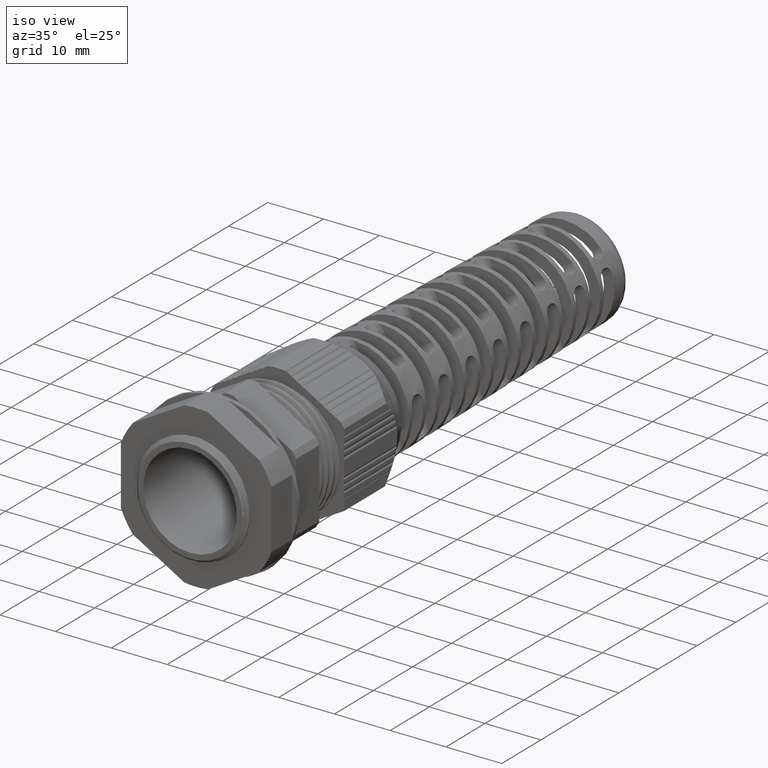
[diagram: clean part render]
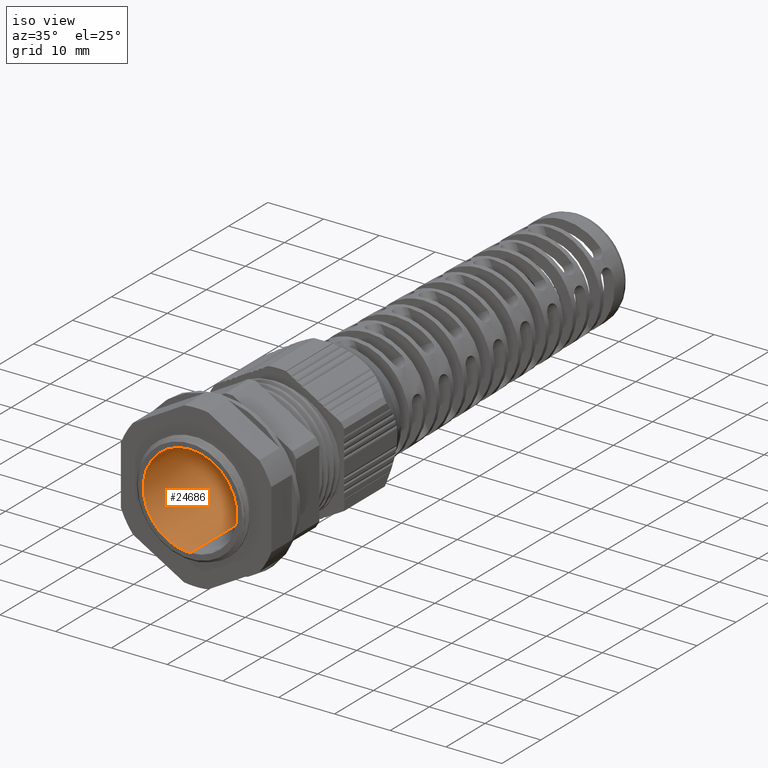
[diagram: tour spotlight — one face highlighted and labeled with its STEP entity id]
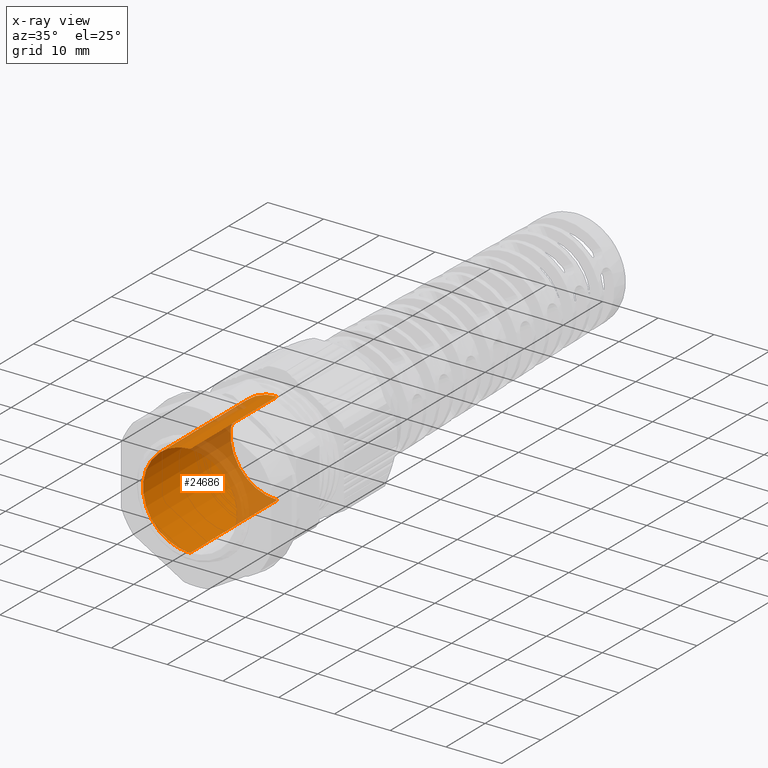
[diagram: x-ray of the same camera — body ghosted, this tour face saturated]
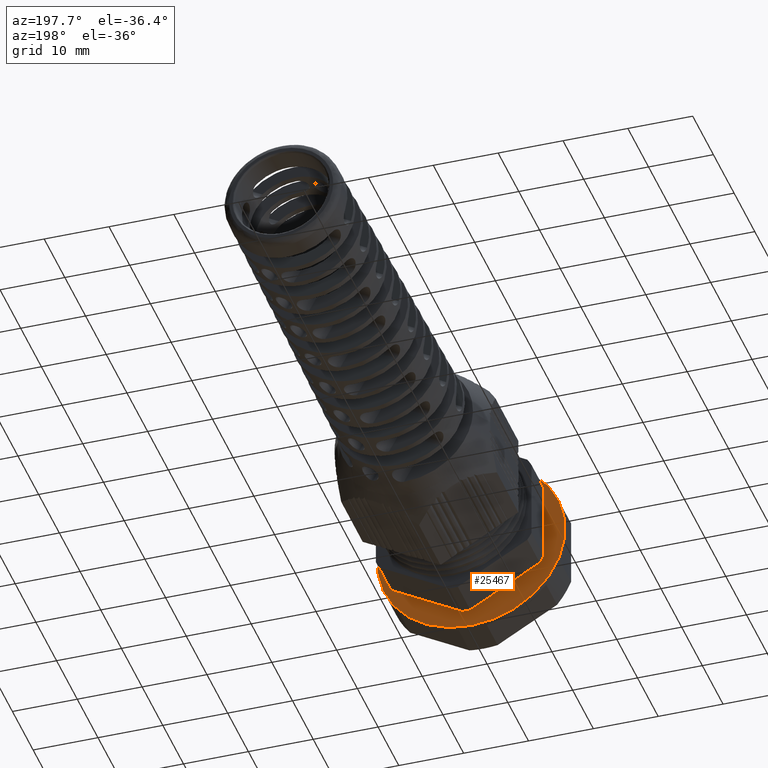
[diagram: tour spotlight — one face highlighted and labeled with its STEP entity id]
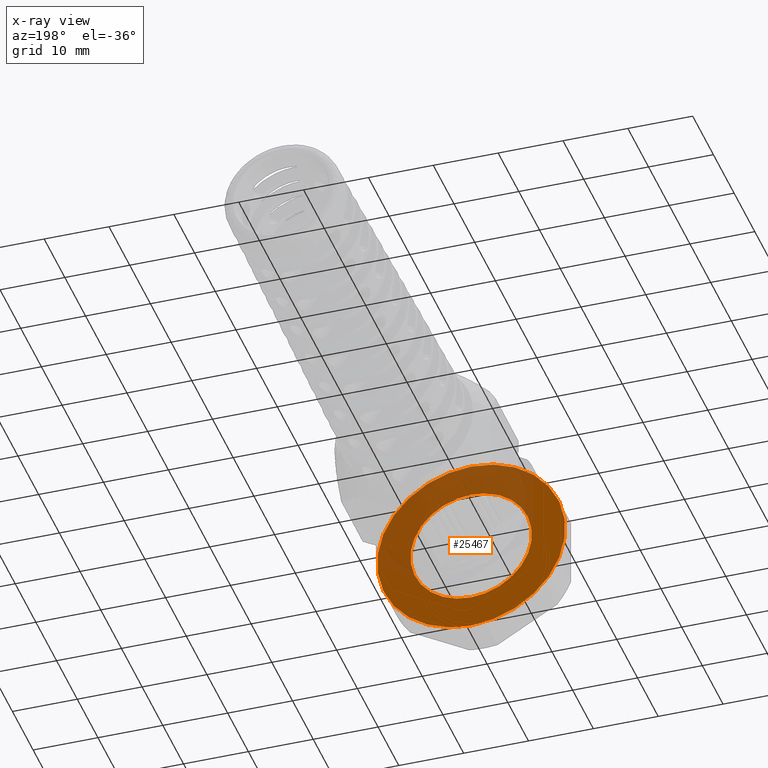
[diagram: x-ray of the same camera — body ghosted, this tour face saturated]
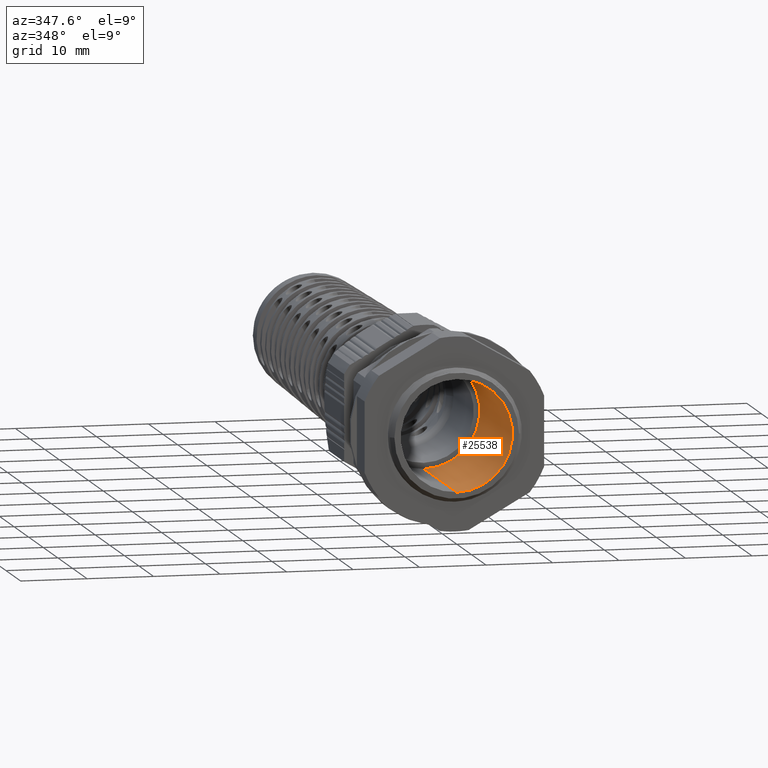
[diagram: tour spotlight — one face highlighted and labeled with its STEP entity id]
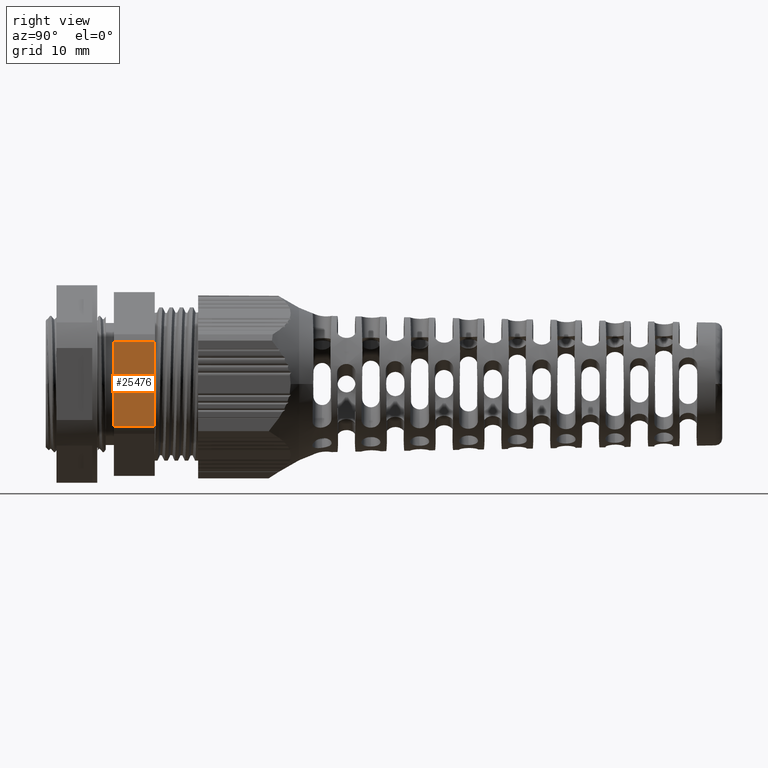
[diagram: tour spotlight — one face highlighted and labeled with its STEP entity id]
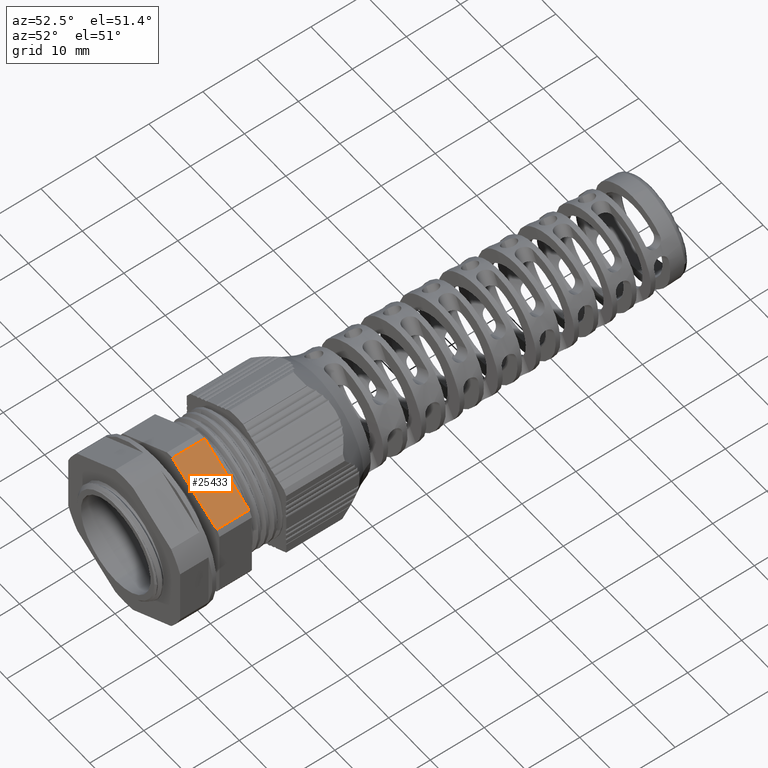
[diagram: tour spotlight — one face highlighted and labeled with its STEP entity id]
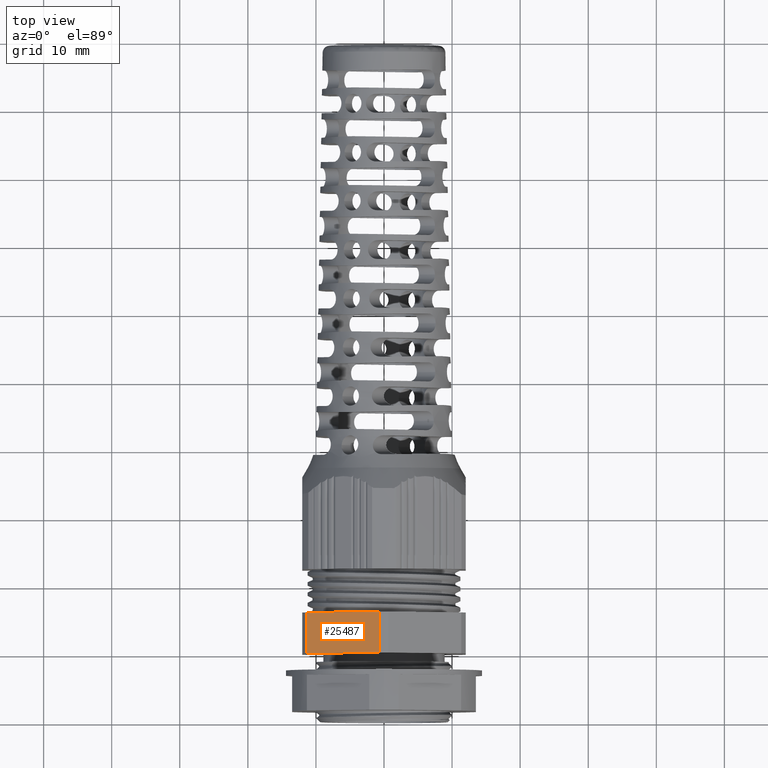
[diagram: tour spotlight — one face highlighted and labeled with its STEP entity id]
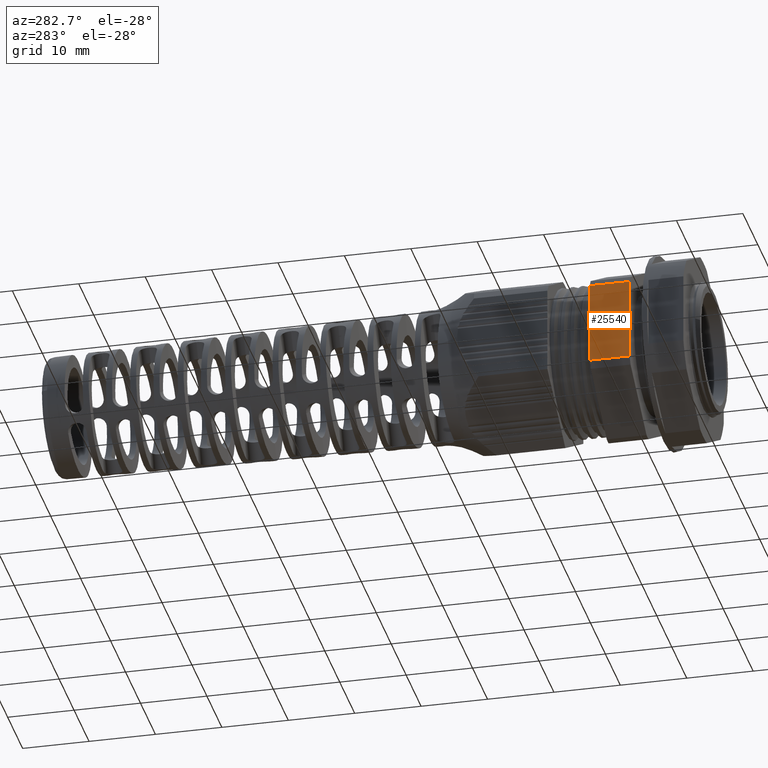
[diagram: tour spotlight — one face highlighted and labeled with its STEP entity id]
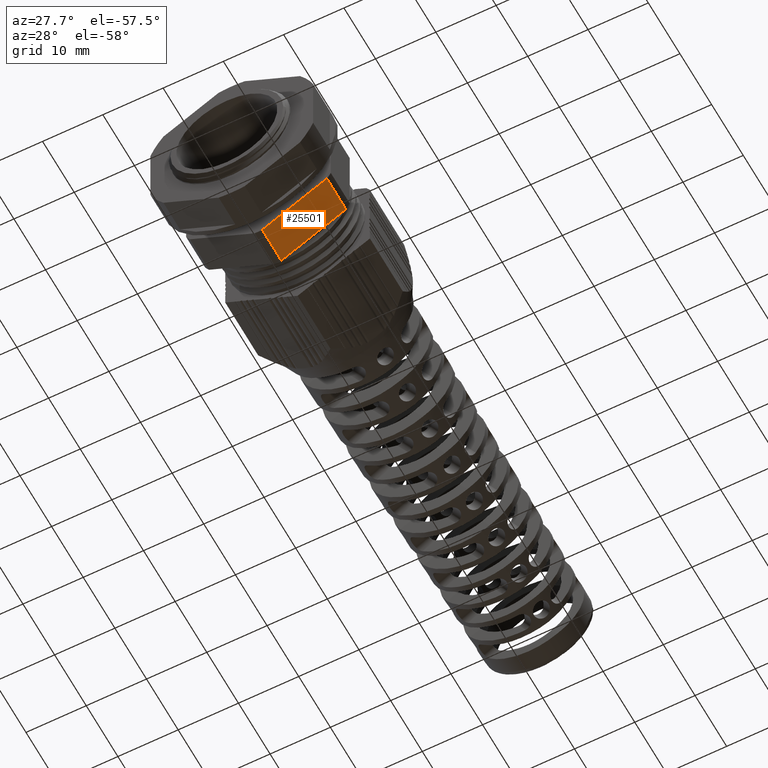
[diagram: tour spotlight — one face highlighted and labeled with its STEP entity id]
A machine part: a face-by-face anatomy tour. The part has 711 B-rep faces; the first image is the clean iso view, then the 8 largest visible faces are spotlighted one at a time (largest first), each with its STEP entity span.

Face 1 — iso view, entity #24686. An x-ray twin of the same camera follows (body ghosted, this face saturated) — the face is partly hidden behind the body. In plain terms, the highlighted cylindrical surface (partial cylindrical patch) has radius 8.4 mm, axis along (0, -1, 0).
Definition (entity closure, byte-faithful):
#2211 = FACE_OUTER_BOUND ( 'NONE', #24215, .T. ) ;
#2215 = CYLINDRICAL_SURFACE ( 'NONE', #22897, 8.400000000000000400 ) ;
#2222 = DIRECTION ( 'NONE',  ( 0.0000000000000000000, -1.000000000000000000, 0.0000000000000000000 ) ) ;
#2232 = DIRECTION ( 'NONE',  ( 0.0000000000000000000, 0.0000000000000000000, -1.000000000000000000 ) ) ;
#2248 = CARTESIAN_POINT ( 'NONE',  ( 50.00000000000000000, 25.28476438100789600, 0.0000000000000000000 ) ) ;
#11690 = CARTESIAN_POINT ( 'NONE',  ( 50.00000000000000000, 25.28476438100789600, 8.400000000000000400 ) ) ;
#11710 = DIRECTION ( 'NONE',  ( 0.0000000000000000000, -1.000000000000000000, 0.0000000000000000000 ) ) ;
#11726 = LINE ( 'NONE', #11690, #23560 ) ;
#11730 = DIRECTION ( 'NONE',  ( -0.0000000000000000000, 1.000000000000000000, -0.0000000000000000000 ) ) ;
#11753 = DIRECTION ( 'NONE',  ( 0.0000000000000000000, 0.0000000000000000000, -1.000000000000000000 ) ) ;
#11758 = CARTESIAN_POINT ( 'NONE',  ( 50.00000000000000000, 0.1283419244637873400, 0.0000000000000000000 ) ) ;
#11792 = CARTESIAN_POINT ( 'NONE',  ( 50.00000000000000000, 22.50000000000000000, 0.0000000000000000000 ) ) ;
#11796 = CARTESIAN_POINT ( 'NONE',  ( 50.00000000000000000, 25.28476438100789600, -8.400000000000000400 ) ) ;
#11800 = DIRECTION ( 'NONE',  ( 0.0000000000000000000, -1.000000000000000000, 0.0000000000000000000 ) ) ;
#11804 = DIRECTION ( 'NONE',  ( 0.0000000000000000000, 0.0000000000000000000, -1.000000000000000000 ) ) ;
#11811 = LINE ( 'NONE', #11796, #23603 ) ;
#11820 = DIRECTION ( 'NONE',  ( 0.0000000000000000000, -1.000000000000000000, 0.0000000000000000000 ) ) ;
#16553 = ORIENTED_EDGE ( 'NONE', *, *, #25654, .F. ) ;
#16615 = ORIENTED_EDGE ( 'NONE', *, *, #25629, .T. ) ;
#16623 = ORIENTED_EDGE ( 'NONE', *, *, #25642, .F. ) ;
#16625 = ORIENTED_EDGE ( 'NONE', *, *, #25651, .F. ) ;
#22897 = AXIS2_PLACEMENT_3D ( 'NONE', #2248, #2222, #2232 ) ;
#23560 = VECTOR ( 'NONE', #11710, 1000.000000000000000 ) ;
#23583 = CIRCLE ( 'NONE', #23585, 8.400000000000000400 ) ;
#23585 = AXIS2_PLACEMENT_3D ( 'NONE', #11758, #11730, #11753 ) ;
#23603 = VECTOR ( 'NONE', #11820, 1000.000000000000000 ) ;
#23628 = AXIS2_PLACEMENT_3D ( 'NONE', #11792, #11800, #11804 ) ;
#23635 = CIRCLE ( 'NONE', #23628, 8.400000000000000400 ) ;
#24051 = VERTEX_POINT ( 'NONE', #33715 ) ;
#24056 = VERTEX_POINT ( 'NONE', #33710 ) ;
#24109 = VERTEX_POINT ( 'NONE', #33724 ) ;
#24175 = VERTEX_POINT ( 'NONE', #33697 ) ;
#24215 = EDGE_LOOP ( 'NONE', ( #16553, #16615, #16623, #16625 ) ) ;
#24686 = ADVANCED_FACE ( 'NONE', ( #2211 ), #2215, .F. ) ;
#25629 = EDGE_CURVE ( 'NONE', #24056, #24109, #11726, .T. ) ;
#25642 = EDGE_CURVE ( 'NONE', #24051, #24109, #23583, .T. ) ;
#25651 = EDGE_CURVE ( 'NONE', #24175, #24051, #11811, .T. ) ;
#25654 = EDGE_CURVE ( 'NONE', #24056, #24175, #23635, .T. ) ;
#33697 = CARTESIAN_POINT ( 'NONE',  ( 50.00000000000000000, 22.50000000000000000, -8.400000000000000400 ) ) ;
#33710 = CARTESIAN_POINT ( 'NONE',  ( 50.00000000000000000, 22.50000000000000000, 8.400000000000000400 ) ) ;
#33715 = CARTESIAN_POINT ( 'NONE',  ( 50.00000000000000000, 0.1283419244637873400, -8.400000000000000400 ) ) ;
#33724 = CARTESIAN_POINT ( 'NONE',  ( 50.00000000000000000, 0.1283419244637873400, 8.400000000000000400 ) ) ;

Face 2 — auxiliary view, entity #25467. An x-ray twin of the same camera follows (body ghosted, this face saturated) — the face is partly hidden behind the body. In plain terms, the highlighted planar face has unit normal (0, -1, 0).
Definition (entity closure, byte-faithful):
#5025 = DIRECTION ( 'NONE',  ( 0.0000000000000000000, 0.0000000000000000000, -1.000000000000000000 ) ) ;
#5030 = DIRECTION ( 'NONE',  ( -0.0000000000000000000, 1.000000000000000000, -0.0000000000000000000 ) ) ;
#5062 = CARTESIAN_POINT ( 'NONE',  ( 50.00315647922916200, 7.699999999999998400, 0.001797943620259926300 ) ) ;
#5123 = CARTESIAN_POINT ( 'NONE',  ( 50.00000000000045500, 7.699999999999998400, 3.261280134836397300E-013 ) ) ;
#5191 = DIRECTION ( 'NONE',  ( -0.0000000000000000000, -1.000000000000000000, -0.0000000000000000000 ) ) ;
#5206 = DIRECTION ( 'NONE',  ( 0.0000000000000000000, 0.0000000000000000000, 1.000000000000000000 ) ) ;
#7624 = FACE_BOUND ( 'NONE', #24140, .T. ) ;
#7636 = FACE_OUTER_BOUND ( 'NONE', #24102, .T. ) ;
#7637 = PLANE ( 'NONE',  #23421 ) ;
#7638 = CARTESIAN_POINT ( 'NONE',  ( 50.00000000000000000, 7.700000000000000200, 0.0000000000000000000 ) ) ;
#7640 = DIRECTION ( 'NONE',  ( 0.0000000000000000000, -1.000000000000000000, 0.0000000000000000000 ) ) ;
#7641 = DIRECTION ( 'NONE',  ( 0.0000000000000000000, -0.0000000000000000000, -1.000000000000000000 ) ) ;
#12187 = CARTESIAN_POINT ( 'NONE',  ( 50.00315647922916200, 7.699999999999998400, 0.001797943620259926300 ) ) ;
#12237 = DIRECTION ( 'NONE',  ( -0.0000000000000000000, 1.000000000000000000, -0.0000000000000000000 ) ) ;
#12246 = DIRECTION ( 'NONE',  ( 0.0000000000000000000, 0.0000000000000000000, -1.000000000000000000 ) ) ;
#12385 = DIRECTION ( 'NONE',  ( 0.0000000000000000000, 0.0000000000000000000, 1.000000000000000000 ) ) ;
#12388 = CARTESIAN_POINT ( 'NONE',  ( 50.00000000000045500, 7.699999999999998400, 3.261280134836397300E-013 ) ) ;
#12403 = DIRECTION ( 'NONE',  ( -0.0000000000000000000, -1.000000000000000000, -0.0000000000000000000 ) ) ;
#18710 = VERTEX_POINT ( 'NONE', #33336 ) ;
#18814 = VERTEX_POINT ( 'NONE', #33338 ) ;
#18915 = ORIENTED_EDGE ( 'NONE', *, *, #25077, .F. ) ;
#18941 = ORIENTED_EDGE ( 'NONE', *, *, #25092, .F. ) ;
#18982 = ORIENTED_EDGE ( 'NONE', *, *, #25731, .F. ) ;
#19006 = ORIENTED_EDGE ( 'NONE', *, *, #25708, .F. ) ;
#21197 = CIRCLE ( 'NONE', #21199, 9.363636363636365100 ) ;
#21199 = AXIS2_PLACEMENT_3D ( 'NONE', #5062, #5030, #5025 ) ;
#21252 = CIRCLE ( 'NONE', #21285, 14.50000000000000500 ) ;
#21285 = AXIS2_PLACEMENT_3D ( 'NONE', #5123, #5191, #5206 ) ;
#23421 = AXIS2_PLACEMENT_3D ( 'NONE', #7638, #7640, #7641 ) ;
#23641 = CIRCLE ( 'NONE', #23642, 14.50000000000000500 ) ;
#23642 = AXIS2_PLACEMENT_3D ( 'NONE', #12388, #12403, #12385 ) ;
#23662 = AXIS2_PLACEMENT_3D ( 'NONE', #12187, #12237, #12246 ) ;
#23677 = CIRCLE ( 'NONE', #23662, 9.363636363636365100 ) ;
#23976 = VERTEX_POINT ( 'NONE', #33652 ) ;
#24058 = VERTEX_POINT ( 'NONE', #33717 ) ;
#24102 = EDGE_LOOP ( 'NONE', ( #18941, #18982 ) ) ;
#24140 = EDGE_LOOP ( 'NONE', ( #18915, #19006 ) ) ;
#25077 = EDGE_CURVE ( 'NONE', #18710, #18814, #21197, .T. ) ;
#25092 = EDGE_CURVE ( 'NONE', #24058, #23976, #21252, .T. ) ;
#25467 = ADVANCED_FACE ( 'NONE', ( #7636, #7624 ), #7637, .F. ) ;
#25708 = EDGE_CURVE ( 'NONE', #18814, #18710, #23677, .T. ) ;
#25731 = EDGE_CURVE ( 'NONE', #23976, #24058, #23641, .T. ) ;
#33336 = CARTESIAN_POINT ( 'NONE',  ( 50.00315647922916200, 7.699999999999998400, -9.361838420016106000 ) ) ;
#33338 = CARTESIAN_POINT ( 'NONE',  ( 50.00315647922916200, 7.699999999999998400, 9.365434307256626000 ) ) ;
#33652 = CARTESIAN_POINT ( 'NONE',  ( 50.00000000000045500, 7.699999999999998400, -14.49999999999968000 ) ) ;
#33717 = CARTESIAN_POINT ( 'NONE',  ( 50.00000000000045500, 7.699999999999998400, 14.50000000000033200 ) ) ;

Face 3 — auxiliary view, entity #25538. In plain terms, the highlighted cylindrical surface (partial cylindrical patch) has radius 8.4 mm, axis along (0, -1, 0).
Definition (entity closure, byte-faithful):
#8468 = DIRECTION ( 'NONE',  ( 0.0000000000000000000, 0.0000000000000000000, -1.000000000000000000 ) ) ;
#8492 = FACE_OUTER_BOUND ( 'NONE', #18303, .T. ) ;
#8494 = CYLINDRICAL_SURFACE ( 'NONE', #23452, 8.400000000000000400 ) ;
#8498 = DIRECTION ( 'NONE',  ( 0.0000000000000000000, -1.000000000000000000, 0.0000000000000000000 ) ) ;
#8506 = CARTESIAN_POINT ( 'NONE',  ( 50.00000000000000000, 25.28476438100789600, 0.0000000000000000000 ) ) ;
#11690 = CARTESIAN_POINT ( 'NONE',  ( 50.00000000000000000, 25.28476438100789600, 8.400000000000000400 ) ) ;
#11710 = DIRECTION ( 'NONE',  ( 0.0000000000000000000, -1.000000000000000000, 0.0000000000000000000 ) ) ;
#11726 = LINE ( 'NONE', #11690, #23560 ) ;
#11796 = CARTESIAN_POINT ( 'NONE',  ( 50.00000000000000000, 25.28476438100789600, -8.400000000000000400 ) ) ;
#11811 = LINE ( 'NONE', #11796, #23603 ) ;
#11820 = DIRECTION ( 'NONE',  ( 0.0000000000000000000, -1.000000000000000000, 0.0000000000000000000 ) ) ;
#15620 = EDGE_CURVE ( 'NONE', #24175, #24056, #32193, .T. ) ;
#15668 = EDGE_CURVE ( 'NONE', #24109, #24051, #32248, .T. ) ;
#18303 = EDGE_LOOP ( 'NONE', ( #19651, #19669, #19653, #19667 ) ) ;
#19651 = ORIENTED_EDGE ( 'NONE', *, *, #25629, .F. ) ;
#19653 = ORIENTED_EDGE ( 'NONE', *, *, #25651, .T. ) ;
#19667 = ORIENTED_EDGE ( 'NONE', *, *, #15668, .F. ) ;
#19669 = ORIENTED_EDGE ( 'NONE', *, *, #15620, .F. ) ;
#23452 = AXIS2_PLACEMENT_3D ( 'NONE', #8506, #8498, #8468 ) ;
#23560 = VECTOR ( 'NONE', #11710, 1000.000000000000000 ) ;
#23603 = VECTOR ( 'NONE', #11820, 1000.000000000000000 ) ;
#24051 = VERTEX_POINT ( 'NONE', #33715 ) ;
#24056 = VERTEX_POINT ( 'NONE', #33710 ) ;
#24109 = VERTEX_POINT ( 'NONE', #33724 ) ;
#24175 = VERTEX_POINT ( 'NONE', #33697 ) ;
#25538 = ADVANCED_FACE ( 'NONE', ( #8492 ), #8494, .F. ) ;
#25629 = EDGE_CURVE ( 'NONE', #24056, #24109, #11726, .T. ) ;
#25651 = EDGE_CURVE ( 'NONE', #24175, #24051, #11811, .T. ) ;
#29118 = DIRECTION ( 'NONE',  ( 0.0000000000000000000, 0.0000000000000000000, -1.000000000000000000 ) ) ;
#29164 = CARTESIAN_POINT ( 'NONE',  ( 50.00000000000000000, 22.50000000000000000, 0.0000000000000000000 ) ) ;
#29191 = DIRECTION ( 'NONE',  ( 0.0000000000000000000, -1.000000000000000000, 0.0000000000000000000 ) ) ;
#29592 = DIRECTION ( 'NONE',  ( -0.0000000000000000000, 1.000000000000000000, -0.0000000000000000000 ) ) ;
#29610 = CARTESIAN_POINT ( 'NONE',  ( 50.00000000000000000, 0.1283419244637873400, 0.0000000000000000000 ) ) ;
#29611 = DIRECTION ( 'NONE',  ( 0.0000000000000000000, 0.0000000000000000000, -1.000000000000000000 ) ) ;
#32152 = AXIS2_PLACEMENT_3D ( 'NONE', #29164, #29191, #29118 ) ;
#32193 = CIRCLE ( 'NONE', #32152, 8.400000000000000400 ) ;
#32248 = CIRCLE ( 'NONE', #32250, 8.400000000000000400 ) ;
#32250 = AXIS2_PLACEMENT_3D ( 'NONE', #29610, #29592, #29611 ) ;
#33697 = CARTESIAN_POINT ( 'NONE',  ( 50.00000000000000000, 22.50000000000000000, -8.400000000000000400 ) ) ;
#33710 = CARTESIAN_POINT ( 'NONE',  ( 50.00000000000000000, 22.50000000000000000, 8.400000000000000400 ) ) ;
#33715 = CARTESIAN_POINT ( 'NONE',  ( 50.00000000000000000, 0.1283419244637873400, -8.400000000000000400 ) ) ;
#33724 = CARTESIAN_POINT ( 'NONE',  ( 50.00000000000000000, 0.1283419244637873400, 8.400000000000000400 ) ) ;

Face 4 — right view, entity #25476. In plain terms, the highlighted planar face has unit normal (1, -0, 0).
Definition (entity closure, byte-faithful):
#7059 = LINE ( 'NONE', #7091, #24269 ) ;
#7089 = DIRECTION ( 'NONE',  ( 0.0000000000000000000, 1.000000000000000000, 0.0000000000000000000 ) ) ;
#7091 = CARTESIAN_POINT ( 'NONE',  ( 62.00000000000000000, 19.69999999999999900, -6.184658438426543700 ) ) ;
#7656 = CARTESIAN_POINT ( 'NONE',  ( 62.00000000000000000, 19.69999999999999900, -7.736493607140996400 ) ) ;
#7664 = DIRECTION ( 'NONE',  ( 5.605651487825220100E-016, 0.0000000000000000000, -1.000000000000000000 ) ) ;
#7685 = PLANE ( 'NONE',  #23400 ) ;
#7686 = DIRECTION ( 'NONE',  ( 1.000000000000000000, -0.0000000000000000000, 5.605651487825220100E-016 ) ) ;
#7696 = FACE_OUTER_BOUND ( 'NONE', #18187, .T. ) ;
#14790 = CARTESIAN_POINT ( 'NONE',  ( 61.99999999999999300, 10.13000000000001000, 6.184658438426533100 ) ) ;
#14791 = CARTESIAN_POINT ( 'NONE',  ( 62.00000000000000000, 16.13000000000000300, -6.184658438426526000 ) ) ;
#14819 = CARTESIAN_POINT ( 'NONE',  ( 61.99999999999999300, 16.13000000000000300, 6.184658438426530400 ) ) ;
#14869 = CARTESIAN_POINT ( 'NONE',  ( 62.00000000000000000, 10.13000000000001000, -6.184658438426521500 ) ) ;
#15623 = EDGE_CURVE ( 'NONE', #29066, #29113, #29084, .T. ) ;
#15965 = EDGE_CURVE ( 'NONE', #29095, #29194, #32984, .T. ) ;
#16017 = EDGE_CURVE ( 'NONE', #29066, #29095, #33176, .T. ) ;
#18187 = EDGE_LOOP ( 'NONE', ( #19518, #19545, #19489, #19566 ) ) ;
#19489 = ORIENTED_EDGE ( 'NONE', *, *, #16017, .T. ) ;
#19518 = ORIENTED_EDGE ( 'NONE', *, *, #25365, .T. ) ;
#19545 = ORIENTED_EDGE ( 'NONE', *, *, #15623, .F. ) ;
#19566 = ORIENTED_EDGE ( 'NONE', *, *, #15965, .T. ) ;
#21789 = VECTOR ( 'NONE', #33156, 1000.000000000000000 ) ;
#23400 = AXIS2_PLACEMENT_3D ( 'NONE', #7656, #7686, #7664 ) ;
#24269 = VECTOR ( 'NONE', #7089, 1000.000000000000000 ) ;
#25365 = EDGE_CURVE ( 'NONE', #29194, #29113, #7059, .T. ) ;
#25476 = ADVANCED_FACE ( 'NONE', ( #7696 ), #7685, .T. ) ;
#29066 = VERTEX_POINT ( 'NONE', #14819 ) ;
#29084 = LINE ( 'NONE', #29090, #32170 ) ;
#29090 = CARTESIAN_POINT ( 'NONE',  ( 61.99999999999999300, 16.13000000000000300, 0.0000000000000000000 ) ) ;
#29095 = VERTEX_POINT ( 'NONE', #14790 ) ;
#29113 = VERTEX_POINT ( 'NONE', #14791 ) ;
#29146 = DIRECTION ( 'NONE',  ( -0.0000000000000000000, 0.0000000000000000000, -1.000000000000000000 ) ) ;
#29194 = VERTEX_POINT ( 'NONE', #14869 ) ;
#32170 = VECTOR ( 'NONE', #29146, 1000.000000000000000 ) ;
#32354 = VECTOR ( 'NONE', #33014, 1000.000000000000000 ) ;
#32984 = LINE ( 'NONE', #33003, #32354 ) ;
#33003 = CARTESIAN_POINT ( 'NONE',  ( 62.00000000000000000, 10.13000000000001000, -7.736493607140996400 ) ) ;
#33014 = DIRECTION ( 'NONE',  ( 5.605651487825220100E-016, 0.0000000000000000000, -1.000000000000000000 ) ) ;
#33146 = CARTESIAN_POINT ( 'NONE',  ( 61.99999999999999300, 19.69999999999999900, 6.184658438426551700 ) ) ;
#33156 = DIRECTION ( 'NONE',  ( -0.0000000000000000000, -1.000000000000000000, -0.0000000000000000000 ) ) ;
#33176 = LINE ( 'NONE', #33146, #21789 ) ;

Face 5 — auxiliary view, entity #25433. In plain terms, the highlighted planar face has unit normal (0.5, -0, 0.866).
Definition (entity closure, byte-faithful):
#7441 = DIRECTION ( 'NONE',  ( 0.8660254037844387100, 0.0000000000000000000, -0.4999999999999998900 ) ) ;
#7478 = FACE_OUTER_BOUND ( 'NONE', #18264, .T. ) ;
#7481 = DIRECTION ( 'NONE',  ( 0.4999999999999998900, -0.0000000000000000000, 0.8660254037844387100 ) ) ;
#7485 = PLANE ( 'NONE',  #23324 ) ;
#7486 = CARTESIAN_POINT ( 'NONE',  ( 62.69999999999998900, 19.69999999999999900, 6.524058041842774700 ) ) ;
#14829 = CARTESIAN_POINT ( 'NONE',  ( 61.35607132140716400, 16.13000000000000300, 7.299975626199999300 ) ) ;
#14834 = CARTESIAN_POINT ( 'NONE',  ( 50.64392867859284300, 10.13000000000001000, 13.48463406462651500 ) ) ;
#14836 = CARTESIAN_POINT ( 'NONE',  ( 61.35607132140716400, 10.13000000000001000, 7.299975626200002800 ) ) ;
#14902 = CARTESIAN_POINT ( 'NONE',  ( 50.64392867859284300, 16.13000000000000300, 13.48463406462651700 ) ) ;
#15555 = EDGE_CURVE ( 'NONE', #29106, #29058, #28690, .T. ) ;
#15572 = EDGE_CURVE ( 'NONE', #29147, #29106, #28742, .T. ) ;
#15605 = EDGE_CURVE ( 'NONE', #29147, #29100, #29002, .T. ) ;
#16018 = EDGE_CURVE ( 'NONE', #29058, #29100, #33139, .T. ) ;
#18264 = EDGE_LOOP ( 'NONE', ( #19538, #19576, #19486, #19512 ) ) ;
#19486 = ORIENTED_EDGE ( 'NONE', *, *, #15572, .T. ) ;
#19512 = ORIENTED_EDGE ( 'NONE', *, *, #15555, .T. ) ;
#19538 = ORIENTED_EDGE ( 'NONE', *, *, #16018, .T. ) ;
#19576 = ORIENTED_EDGE ( 'NONE', *, *, #15605, .F. ) ;
#21770 = VECTOR ( 'NONE', #33181, 1000.000000000000000 ) ;
#23324 = AXIS2_PLACEMENT_3D ( 'NONE', #7486, #7481, #7441 ) ;
#25433 = ADVANCED_FACE ( 'NONE', ( #7478 ), #7485, .T. ) ;
#28690 = LINE ( 'NONE', #28723, #32720 ) ;
#28698 = DIRECTION ( 'NONE',  ( 0.8660254037844387100, 0.0000000000000000000, -0.4999999999999998900 ) ) ;
#28723 = CARTESIAN_POINT ( 'NONE',  ( 62.69999999999998900, 10.13000000000001000, 6.524058041842774700 ) ) ;
#28742 = LINE ( 'NONE', #28744, #32723 ) ;
#28744 = CARTESIAN_POINT ( 'NONE',  ( 50.64392867859283600, 19.69999999999999900, 13.48463406462652300 ) ) ;
#28746 = DIRECTION ( 'NONE',  ( -0.0000000000000000000, -1.000000000000000000, -0.0000000000000000000 ) ) ;
#28972 = DIRECTION ( 'NONE',  ( 0.8660254037844384900, 0.0000000000000000000, -0.5000000000000002200 ) ) ;
#29002 = LINE ( 'NONE', #29016, #32191 ) ;
#29016 = CARTESIAN_POINT ( 'NONE',  ( 50.64392867859283600, 16.13000000000000300, 13.48463406462652600 ) ) ;
#29058 = VERTEX_POINT ( 'NONE', #14836 ) ;
#29100 = VERTEX_POINT ( 'NONE', #14829 ) ;
#29106 = VERTEX_POINT ( 'NONE', #14834 ) ;
#29147 = VERTEX_POINT ( 'NONE', #14902 ) ;
#32191 = VECTOR ( 'NONE', #28972, 1000.000000000000200 ) ;
#32720 = VECTOR ( 'NONE', #28698, 1000.000000000000000 ) ;
#32723 = VECTOR ( 'NONE', #28746, 1000.000000000000000 ) ;
#33139 = LINE ( 'NONE', #33140, #21770 ) ;
#33140 = CARTESIAN_POINT ( 'NONE',  ( 61.35607132140718500, 19.69999999999999900, 7.299975626199990400 ) ) ;
#33181 = DIRECTION ( 'NONE',  ( 0.0000000000000000000, 1.000000000000000000, 0.0000000000000000000 ) ) ;

Face 6 — top view, entity #25487. In plain terms, the highlighted planar face has unit normal (-0.5, 0, 0.866).
Definition (entity closure, byte-faithful):
#7717 = DIRECTION ( 'NONE',  ( -0.4999999999999998900, 0.0000000000000000000, 0.8660254037844387100 ) ) ;
#7729 = DIRECTION ( 'NONE',  ( 0.8660254037844387100, 0.0000000000000000000, 0.4999999999999998900 ) ) ;
#7737 = CARTESIAN_POINT ( 'NONE',  ( 50.70000000000000300, 19.69999999999999900, 14.26055164898373600 ) ) ;
#7753 = FACE_OUTER_BOUND ( 'NONE', #18253, .T. ) ;
#7757 = PLANE ( 'NONE',  #23397 ) ;
#14797 = CARTESIAN_POINT ( 'NONE',  ( 49.35607132140719200, 16.13000000000000300, 13.48463406462652300 ) ) ;
#14866 = CARTESIAN_POINT ( 'NONE',  ( 49.35607132140719200, 10.13000000000001000, 13.48463406462652100 ) ) ;
#14895 = CARTESIAN_POINT ( 'NONE',  ( 38.64392867859282900, 16.13000000000000300, 7.299975626199980600 ) ) ;
#14901 = CARTESIAN_POINT ( 'NONE',  ( 38.64392867859282900, 10.13000000000001000, 7.299975626199982400 ) ) ;
#15595 = EDGE_CURVE ( 'NONE', #29155, #29145, #28938, .T. ) ;
#15615 = EDGE_CURVE ( 'NONE', #29145, #29165, #29176, .T. ) ;
#15649 = EDGE_CURVE ( 'NONE', #29155, #29115, #29435, .T. ) ;
#16009 = EDGE_CURVE ( 'NONE', #29165, #29115, #33162, .T. ) ;
#18253 = EDGE_LOOP ( 'NONE', ( #19537, #19496, #19501, #19505 ) ) ;
#19496 = ORIENTED_EDGE ( 'NONE', *, *, #15649, .F. ) ;
#19501 = ORIENTED_EDGE ( 'NONE', *, *, #15595, .T. ) ;
#19505 = ORIENTED_EDGE ( 'NONE', *, *, #15615, .T. ) ;
#19537 = ORIENTED_EDGE ( 'NONE', *, *, #16009, .T. ) ;
#21787 = VECTOR ( 'NONE', #33153, 1000.000000000000000 ) ;
#23397 = AXIS2_PLACEMENT_3D ( 'NONE', #7737, #7717, #7729 ) ;
#25487 = ADVANCED_FACE ( 'NONE', ( #7753 ), #7757, .T. ) ;
#28863 = CARTESIAN_POINT ( 'NONE',  ( 38.64392867859281500, 19.69999999999999900, 7.299975626199972600 ) ) ;
#28938 = LINE ( 'NONE', #28863, #32147 ) ;
#28949 = DIRECTION ( 'NONE',  ( -0.0000000000000000000, -1.000000000000000000, 0.0000000000000000000 ) ) ;
#29099 = DIRECTION ( 'NONE',  ( 0.8660254037844387100, 0.0000000000000000000, 0.4999999999999998900 ) ) ;
#29115 = VERTEX_POINT ( 'NONE', #14797 ) ;
#29145 = VERTEX_POINT ( 'NONE', #14901 ) ;
#29155 = VERTEX_POINT ( 'NONE', #14895 ) ;
#29165 = VERTEX_POINT ( 'NONE', #14866 ) ;
#29176 = LINE ( 'NONE', #29185, #32195 ) ;
#29185 = CARTESIAN_POINT ( 'NONE',  ( 50.70000000000000300, 10.13000000000001000, 14.26055164898373600 ) ) ;
#29421 = DIRECTION ( 'NONE',  ( 0.8660254037844386000, 0.0000000000000000000, 0.5000000000000001100 ) ) ;
#29430 = CARTESIAN_POINT ( 'NONE',  ( 38.64392867859281500, 16.13000000000000300, 7.299975626199971800 ) ) ;
#29435 = LINE ( 'NONE', #29430, #32234 ) ;
#32147 = VECTOR ( 'NONE', #28949, 1000.000000000000000 ) ;
#32195 = VECTOR ( 'NONE', #29099, 1000.000000000000000 ) ;
#32234 = VECTOR ( 'NONE', #29421, 1000.000000000000000 ) ;
#33145 = CARTESIAN_POINT ( 'NONE',  ( 49.35607132140720700, 19.69999999999999900, 13.48463406462652800 ) ) ;
#33153 = DIRECTION ( 'NONE',  ( 0.0000000000000000000, 1.000000000000000000, -0.0000000000000000000 ) ) ;
#33162 = LINE ( 'NONE', #33145, #21787 ) ;

Face 7 — auxiliary view, entity #25540. In plain terms, the highlighted planar face has unit normal (-1, 0, -0).
Definition (entity closure, byte-faithful):
#7023 = CARTESIAN_POINT ( 'NONE',  ( 38.00000000000000700, 19.69999999999999900, -6.184658438426534000 ) ) ;
#7065 = LINE ( 'NONE', #7023, #24258 ) ;
#7067 = DIRECTION ( 'NONE',  ( -0.0000000000000000000, -1.000000000000000000, -0.0000000000000000000 ) ) ;
#8470 = CARTESIAN_POINT ( 'NONE',  ( 38.00000000000000000, 19.69999999999999900, 7.736493607140980400 ) ) ;
#8487 = DIRECTION ( 'NONE',  ( -1.000000000000000000, 0.0000000000000000000, -3.363390892695134900E-016 ) ) ;
#8516 = FACE_OUTER_BOUND ( 'NONE', #18269, .T. ) ;
#8518 = PLANE ( 'NONE',  #23439 ) ;
#8519 = DIRECTION ( 'NONE',  ( -3.363390892695134900E-016, 0.0000000000000000000, 1.000000000000000000 ) ) ;
#14805 = CARTESIAN_POINT ( 'NONE',  ( 38.00000000000000700, 10.13000000000001000, 6.184658438426505500 ) ) ;
#14814 = CARTESIAN_POINT ( 'NONE',  ( 38.00000000000000700, 10.13000000000001000, -6.184658438426513500 ) ) ;
#14841 = CARTESIAN_POINT ( 'NONE',  ( 38.00000000000000700, 16.13000000000000300, 6.184658438426510000 ) ) ;
#14842 = CARTESIAN_POINT ( 'NONE',  ( 38.00000000000000700, 16.13000000000000300, -6.184658438426514400 ) ) ;
#15612 = EDGE_CURVE ( 'NONE', #29079, #29123, #29040, .T. ) ;
#15627 = EDGE_CURVE ( 'NONE', #29083, #29077, #29138, .T. ) ;
#16008 = EDGE_CURVE ( 'NONE', #29123, #29077, #33129, .T. ) ;
#18269 = EDGE_LOOP ( 'NONE', ( #19491, #19497, #19499, #19604 ) ) ;
#19491 = ORIENTED_EDGE ( 'NONE', *, *, #16008, .T. ) ;
#19497 = ORIENTED_EDGE ( 'NONE', *, *, #15627, .F. ) ;
#19499 = ORIENTED_EDGE ( 'NONE', *, *, #25359, .T. ) ;
#19604 = ORIENTED_EDGE ( 'NONE', *, *, #15612, .T. ) ;
#21699 = VECTOR ( 'NONE', #33135, 1000.000000000000000 ) ;
#23439 = AXIS2_PLACEMENT_3D ( 'NONE', #8470, #8487, #8519 ) ;
#24258 = VECTOR ( 'NONE', #7067, 1000.000000000000000 ) ;
#25359 = EDGE_CURVE ( 'NONE', #29083, #29079, #7065, .T. ) ;
#25540 = ADVANCED_FACE ( 'NONE', ( #8516 ), #8518, .T. ) ;
#28998 = CARTESIAN_POINT ( 'NONE',  ( 38.00000000000000000, 10.13000000000001000, 7.736493607140980400 ) ) ;
#29028 = DIRECTION ( 'NONE',  ( -3.363390892695134900E-016, 0.0000000000000000000, 1.000000000000000000 ) ) ;
#29040 = LINE ( 'NONE', #28998, #32184 ) ;
#29077 = VERTEX_POINT ( 'NONE', #14841 ) ;
#29079 = VERTEX_POINT ( 'NONE', #14814 ) ;
#29083 = VERTEX_POINT ( 'NONE', #14842 ) ;
#29123 = VERTEX_POINT ( 'NONE', #14805 ) ;
#29138 = LINE ( 'NONE', #29314, #32150 ) ;
#29220 = DIRECTION ( 'NONE',  ( 0.0000000000000000000, -0.0000000000000000000, 1.000000000000000000 ) ) ;
#29314 = CARTESIAN_POINT ( 'NONE',  ( 38.00000000000000700, 16.13000000000000300, 0.0000000000000000000 ) ) ;
#32150 = VECTOR ( 'NONE', #29220, 1000.000000000000000 ) ;
#32184 = VECTOR ( 'NONE', #29028, 1000.000000000000000 ) ;
#33090 = CARTESIAN_POINT ( 'NONE',  ( 38.00000000000000000, 19.69999999999999900, 6.184658438426525100 ) ) ;
#33129 = LINE ( 'NONE', #33090, #21699 ) ;
#33135 = DIRECTION ( 'NONE',  ( 0.0000000000000000000, 1.000000000000000000, 0.0000000000000000000 ) ) ;

Face 8 — auxiliary view, entity #25501. In plain terms, the highlighted planar face has unit normal (0.5, 0, -0.866).
Definition (entity closure, byte-faithful):
#5284 = DIRECTION ( 'NONE',  ( 0.4999999999999998900, 0.0000000000000000000, -0.8660254037844387100 ) ) ;
#5733 = DIRECTION ( 'NONE',  ( -0.8660254037844387100, 0.0000000000000000000, -0.4999999999999998900 ) ) ;
#7020 = DIRECTION ( 'NONE',  ( 0.0000000000000000000, 1.000000000000000000, 0.0000000000000000000 ) ) ;
#7021 = CARTESIAN_POINT ( 'NONE',  ( 50.64392867859281500, 19.69999999999999900, -13.48463406462652300 ) ) ;
#7027 = LINE ( 'NONE', #7021, #24265 ) ;
#7168 = CARTESIAN_POINT ( 'NONE',  ( 49.30000000000000400, 19.69999999999999900, -14.26055164898373600 ) ) ;
#7719 = FACE_OUTER_BOUND ( 'NONE', #18256, .T. ) ;
#7782 = PLANE ( 'NONE',  #23483 ) ;
#14799 = CARTESIAN_POINT ( 'NONE',  ( 61.35607132140717800, 10.13000000000001000, -7.299975626199982400 ) ) ;
#14811 = CARTESIAN_POINT ( 'NONE',  ( 50.64392867859283600, 16.13000000000000300, -13.48463406462651700 ) ) ;
#14878 = CARTESIAN_POINT ( 'NONE',  ( 61.35607132140717100, 16.13000000000000300, -7.299975626199983300 ) ) ;
#14889 = CARTESIAN_POINT ( 'NONE',  ( 50.64392867859282900, 10.13000000000001000, -13.48463406462651700 ) ) ;
#15678 = EDGE_CURVE ( 'NONE', #29150, #29132, #29680, .T. ) ;
#15962 = EDGE_CURVE ( 'NONE', #29119, #29143, #32977, .T. ) ;
#15990 = EDGE_CURVE ( 'NONE', #29150, #29119, #33075, .T. ) ;
#18256 = EDGE_LOOP ( 'NONE', ( #19510, #19600, #19553, #19494 ) ) ;
#19494 = ORIENTED_EDGE ( 'NONE', *, *, #15962, .T. ) ;
#19510 = ORIENTED_EDGE ( 'NONE', *, *, #25352, .T. ) ;
#19553 = ORIENTED_EDGE ( 'NONE', *, *, #15990, .T. ) ;
#19600 = ORIENTED_EDGE ( 'NONE', *, *, #15678, .F. ) ;
#23483 = AXIS2_PLACEMENT_3D ( 'NONE', #7168, #5284, #5733 ) ;
#24265 = VECTOR ( 'NONE', #7020, 1000.000000000000000 ) ;
#25352 = EDGE_CURVE ( 'NONE', #29143, #29132, #7027, .T. ) ;
#25501 = ADVANCED_FACE ( 'NONE', ( #7719 ), #7782, .T. ) ;
#29119 = VERTEX_POINT ( 'NONE', #14799 ) ;
#29132 = VERTEX_POINT ( 'NONE', #14811 ) ;
#29143 = VERTEX_POINT ( 'NONE', #14889 ) ;
#29150 = VERTEX_POINT ( 'NONE', #14878 ) ;
#29663 = CARTESIAN_POINT ( 'NONE',  ( 61.35607132140719200, 16.13000000000000300, -7.299975626199974400 ) ) ;
#29667 = DIRECTION ( 'NONE',  ( -0.8660254037844383700, 0.0000000000000000000, -0.5000000000000004400 ) ) ;
#29680 = LINE ( 'NONE', #29663, #32244 ) ;
#32244 = VECTOR ( 'NONE', #29667, 1000.000000000000000 ) ;
#32321 = VECTOR ( 'NONE', #33043, 1000.000000000000000 ) ;
#32353 = VECTOR ( 'NONE', #32980, 1000.000000000000000 ) ;
#32950 = CARTESIAN_POINT ( 'NONE',  ( 49.30000000000000400, 10.13000000000001000, -14.26055164898373600 ) ) ;
#32977 = LINE ( 'NONE', #32950, #32353 ) ;
#32980 = DIRECTION ( 'NONE',  ( -0.8660254037844387100, 0.0000000000000000000, -0.4999999999999998900 ) ) ;
#33043 = DIRECTION ( 'NONE',  ( -0.0000000000000000000, -1.000000000000000000, -0.0000000000000000000 ) ) ;
#33075 = LINE ( 'NONE', #33080, #32321 ) ;
#33080 = CARTESIAN_POINT ( 'NONE',  ( 61.35607132140719200, 19.69999999999999900, -7.299975626199972600 ) ) ;